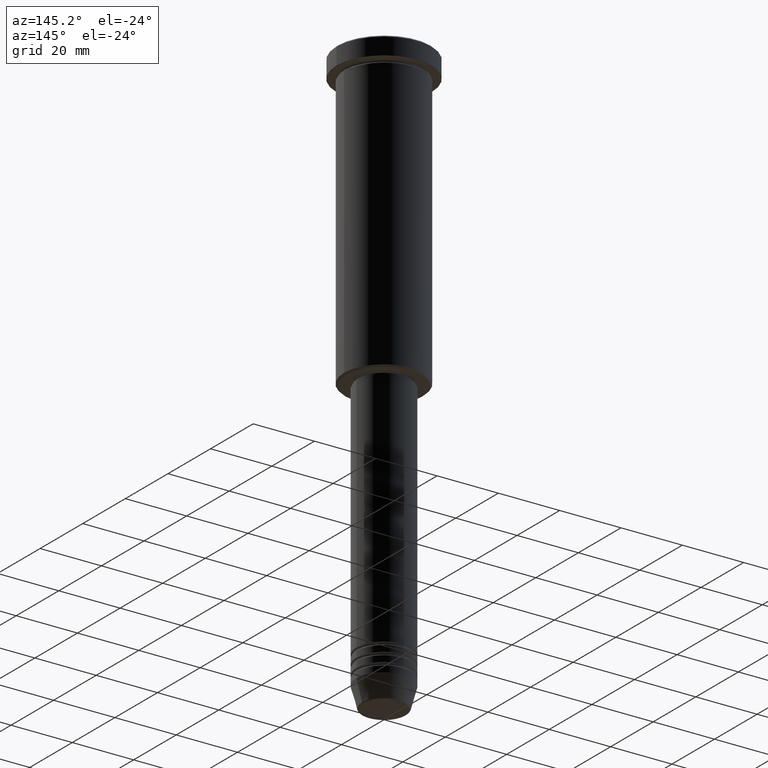
[diagram: clean part render]
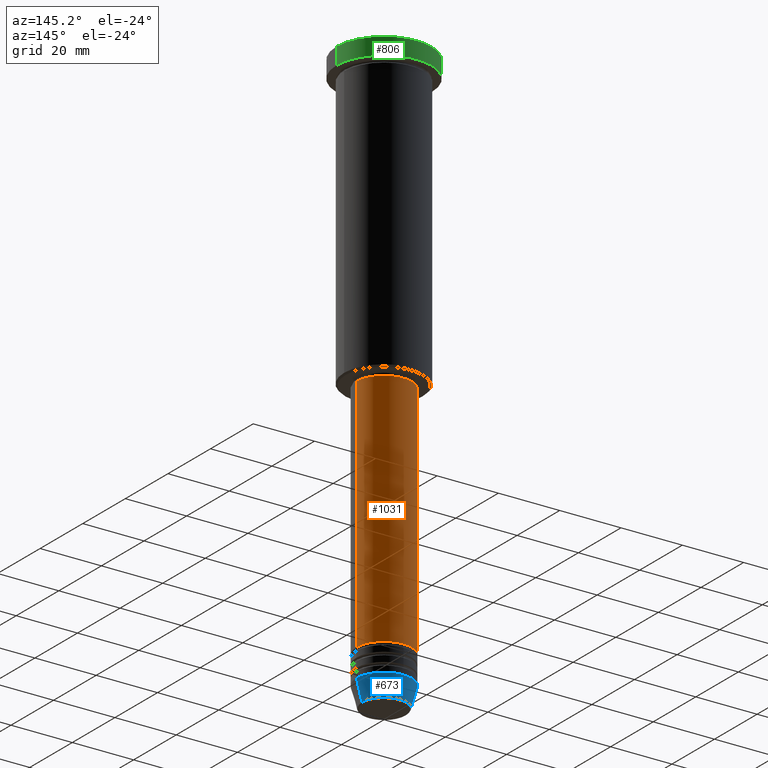
[diagram: same view with three faces highlighted in distinct colors, each labeled with its STEP entity id]
A machine part, auxiliary view with three faces highlighted in distinct colors.
Their STEP definitions:

[orange] entity #1031 — the highlighted cylindrical surface (edge-blend (fillet) strip) has radius 9 mm, axis along (-0, -0, 1).
#18 = EDGE_CURVE ( 'NONE', #261, #1147, #150, .T. ) ;
#36 = AXIS2_PLACEMENT_3D ( 'NONE', #495, #55, #239 ) ;
#55 = DIRECTION ( 'NONE',  ( -0.000000000000000000, -0.000000000000000000, 1.000000000000000000 ) ) ;
#136 = FACE_OUTER_BOUND ( 'NONE', #228, .T. ) ;
#139 = CARTESIAN_POINT ( 'NONE',  ( -9.000000000000000000, 1.102182119232617714E-15, -175.0000000000000000 ) ) ;
#150 = LINE ( 'NONE', #238, #580 ) ;
#151 = DIRECTION ( 'NONE',  ( -0.000000000000000000, -0.000000000000000000, 1.000000000000000000 ) ) ;
#193 = EDGE_CURVE ( 'NONE', #967, #1147, #1107, .T. ) ;
#228 = EDGE_LOOP ( 'NONE', ( #666, #1154, #354, #229 ) ) ;
#229 = ORIENTED_EDGE ( 'NONE', *, *, #918, .F. ) ;
#238 = CARTESIAN_POINT ( 'NONE',  ( -9.000000000000000000, 1.102182119232617714E-15, 0.000000000000000000 ) ) ;
#239 = DIRECTION ( 'NONE',  ( 1.000000000000000000, 0.000000000000000000, 0.000000000000000000 ) ) ;
#257 = VERTEX_POINT ( 'NONE', #597 ) ;
#261 = VERTEX_POINT ( 'NONE', #139 ) ;
#354 = ORIENTED_EDGE ( 'NONE', *, *, #193, .F. ) ;
#394 = AXIS2_PLACEMENT_3D ( 'NONE', #611, #151, #426 ) ;
#426 = DIRECTION ( 'NONE',  ( 1.000000000000000000, 0.000000000000000000, 0.000000000000000000 ) ) ;
#431 = AXIS2_PLACEMENT_3D ( 'NONE', #590, #678, #518 ) ;
#495 = CARTESIAN_POINT ( 'NONE',  ( 0.000000000000000000, 0.000000000000000000, 0.000000000000000000 ) ) ;
#501 = CARTESIAN_POINT ( 'NONE',  ( 9.000000000000000000, 0.000000000000000000, 0.000000000000000000 ) ) ;
#518 = DIRECTION ( 'NONE',  ( 1.000000000000000000, 0.000000000000000000, 0.000000000000000000 ) ) ;
#580 = VECTOR ( 'NONE', #699, 1000.000000000000000 ) ;
#590 = CARTESIAN_POINT ( 'NONE',  ( 0.000000000000000000, 0.000000000000000000, -97.00000000000002842 ) ) ;
#597 = CARTESIAN_POINT ( 'NONE',  ( 9.000000000000000000, 0.000000000000000000, -175.0000000000000000 ) ) ;
#598 = CARTESIAN_POINT ( 'NONE',  ( 9.000000000000000000, 0.000000000000000000, -97.00000000000002842 ) ) ;
#611 = CARTESIAN_POINT ( 'NONE',  ( 0.000000000000000000, 0.000000000000000000, -175.0000000000000000 ) ) ;
#665 = CIRCLE ( 'NONE', #394, 9.000000000000000000 ) ;
#666 = ORIENTED_EDGE ( 'NONE', *, *, #987, .T. ) ;
#678 = DIRECTION ( 'NONE',  ( -0.000000000000000000, -0.000000000000000000, 1.000000000000000000 ) ) ;
#699 = DIRECTION ( 'NONE',  ( -0.000000000000000000, -0.000000000000000000, 1.000000000000000000 ) ) ;
#805 = CARTESIAN_POINT ( 'NONE',  ( -9.000000000000000000, 1.102182119232617714E-15, -97.00000000000002842 ) ) ;
#835 = DIRECTION ( 'NONE',  ( -0.000000000000000000, -0.000000000000000000, 1.000000000000000000 ) ) ;
#918 = EDGE_CURVE ( 'NONE', #257, #967, #963, .T. ) ;
#963 = LINE ( 'NONE', #501, #970 ) ;
#967 = VERTEX_POINT ( 'NONE', #598 ) ;
#970 = VECTOR ( 'NONE', #835, 1000.000000000000000 ) ;
#987 = EDGE_CURVE ( 'NONE', #257, #261, #665, .T. ) ;
#1031 = ADVANCED_FACE ( 'NONE', ( #136 ), #1049, .T. ) ;
#1049 = CYLINDRICAL_SURFACE ( 'NONE', #36, 9.000000000000000000 ) ;
#1107 = CIRCLE ( 'NONE', #431, 9.000000000000000000 ) ;
#1147 = VERTEX_POINT ( 'NONE', #805 ) ;
#1154 = ORIENTED_EDGE ( 'NONE', *, *, #18, .T. ) ;

[blue] entity #673 — the highlighted conical surface has half-angle 15 deg.
#81 = LINE ( 'NONE', #732, #883 ) ;
#142 = CIRCLE ( 'NONE', #499, 7.223655072137196598 ) ;
#149 = EDGE_CURVE ( 'NONE', #475, #360, #818, .T. ) ;
#175 = DIRECTION ( 'NONE',  ( 1.000000000000000000, 0.000000000000000000, 0.000000000000000000 ) ) ;
#208 = CARTESIAN_POINT ( 'NONE',  ( 0.000000000000000000, 0.000000000000000000, -184.0000000000000284 ) ) ;
#236 = DIRECTION ( 'NONE',  ( -0.000000000000000000, -0.000000000000000000, 1.000000000000000000 ) ) ;
#259 = EDGE_CURVE ( 'NONE', #938, #743, #142, .T. ) ;
#279 = CARTESIAN_POINT ( 'NONE',  ( 0.000000000000000000, 0.000000000000000000, -184.0000000000000284 ) ) ;
#360 = VERTEX_POINT ( 'NONE', #1081 ) ;
#427 = LINE ( 'NONE', #434, #724 ) ;
#434 = CARTESIAN_POINT ( 'NONE',  ( 9.000000000000000000, 0.000000000000000000, -184.0000000000000284 ) ) ;
#455 = AXIS2_PLACEMENT_3D ( 'NONE', #208, #577, #932 ) ;
#457 = DIRECTION ( 'NONE',  ( -0.2588190451025213501, 3.169619151431772337E-17, 0.9659258262890680902 ) ) ;
#475 = VERTEX_POINT ( 'NONE', #701 ) ;
#499 = AXIS2_PLACEMENT_3D ( 'NONE', #1144, #236, #608 ) ;
#524 = EDGE_CURVE ( 'NONE', #938, #475, #427, .T. ) ;
#561 = ORIENTED_EDGE ( 'NONE', *, *, #259, .T. ) ;
#577 = DIRECTION ( 'NONE',  ( -0.000000000000000000, -0.000000000000000000, 1.000000000000000000 ) ) ;
#608 = DIRECTION ( 'NONE',  ( 1.000000000000000000, 0.000000000000000000, 0.000000000000000000 ) ) ;
#673 = ADVANCED_FACE ( 'NONE', ( #1172 ), #1060, .T. ) ;
#694 = EDGE_CURVE ( 'NONE', #743, #360, #81, .T. ) ;
#701 = CARTESIAN_POINT ( 'NONE',  ( 9.000000000000000000, 0.000000000000000000, -184.0000000000000284 ) ) ;
#724 = VECTOR ( 'NONE', #788, 1000.000000000000000 ) ;
#732 = CARTESIAN_POINT ( 'NONE',  ( -9.000000000000000000, 1.102182119232617714E-15, -184.0000000000000284 ) ) ;
#739 = AXIS2_PLACEMENT_3D ( 'NONE', #279, #898, #175 ) ;
#743 = VERTEX_POINT ( 'NONE', #804 ) ;
#788 = DIRECTION ( 'NONE',  ( 0.2588190451025213501, 0.000000000000000000, 0.9659258262890680902 ) ) ;
#797 = EDGE_LOOP ( 'NONE', ( #561, #1163, #1089, #850 ) ) ;
#804 = CARTESIAN_POINT ( 'NONE',  ( -7.223655072137197486, 9.934123627281769054E-16, -190.6294095225512706 ) ) ;
#818 = CIRCLE ( 'NONE', #455, 9.000000000000000000 ) ;
#850 = ORIENTED_EDGE ( 'NONE', *, *, #524, .F. ) ;
#883 = VECTOR ( 'NONE', #457, 1000.000000000000000 ) ;
#898 = DIRECTION ( 'NONE',  ( -0.000000000000000000, -0.000000000000000000, 1.000000000000000000 ) ) ;
#932 = DIRECTION ( 'NONE',  ( 1.000000000000000000, 0.000000000000000000, 0.000000000000000000 ) ) ;
#938 = VERTEX_POINT ( 'NONE', #1135 ) ;
#1060 = CONICAL_SURFACE ( 'NONE', #739, 9.000000000000000000, 0.2617993877991500740 ) ;
#1081 = CARTESIAN_POINT ( 'NONE',  ( -9.000000000000000000, 1.102182119232617714E-15, -184.0000000000000284 ) ) ;
#1089 = ORIENTED_EDGE ( 'NONE', *, *, #149, .F. ) ;
#1135 = CARTESIAN_POINT ( 'NONE',  ( 7.223655072137196598, 0.000000000000000000, -190.6294095225512706 ) ) ;
#1144 = CARTESIAN_POINT ( 'NONE',  ( 0.000000000000000000, 0.000000000000000000, -190.6294095225512706 ) ) ;
#1163 = ORIENTED_EDGE ( 'NONE', *, *, #694, .T. ) ;
#1172 = FACE_OUTER_BOUND ( 'NONE', #797, .T. ) ;

[green] entity #806 — the highlighted cylindrical surface (partial cylindrical patch) has radius 15.5 mm, axis along (-0, -0, 1).
#21 = CARTESIAN_POINT ( 'NONE',  ( 15.50000000000000000, 0.000000000000000000, -5.999999999999995559 ) ) ;
#25 = DIRECTION ( 'NONE',  ( -0.000000000000000000, -0.000000000000000000, 1.000000000000000000 ) ) ;
#30 = EDGE_CURVE ( 'NONE', #106, #379, #782, .T. ) ;
#34 = VECTOR ( 'NONE', #116, 1000.000000000000000 ) ;
#37 = ORIENTED_EDGE ( 'NONE', *, *, #56, .F. ) ;
#56 = EDGE_CURVE ( 'NONE', #106, #79, #177, .T. ) ;
#76 = CARTESIAN_POINT ( 'NONE',  ( 0.000000000000000000, 0.000000000000000000, -5.999999999999995559 ) ) ;
#79 = VERTEX_POINT ( 'NONE', #302 ) ;
#103 = CARTESIAN_POINT ( 'NONE',  ( 15.50000000000000000, 0.000000000000000000, 0.000000000000000000 ) ) ;
#106 = VERTEX_POINT ( 'NONE', #21 ) ;
#116 = DIRECTION ( 'NONE',  ( -0.000000000000000000, -0.000000000000000000, 1.000000000000000000 ) ) ;
#177 = LINE ( 'NONE', #103, #956 ) ;
#215 = CYLINDRICAL_SURFACE ( 'NONE', #466, 15.50000000000000000 ) ;
#225 = CARTESIAN_POINT ( 'NONE',  ( -15.50000000000000000, 1.898202538678397557E-15, -0.5000000000000125455 ) ) ;
#302 = CARTESIAN_POINT ( 'NONE',  ( 15.50000000000000000, 0.000000000000000000, -0.5000000000000125455 ) ) ;
#310 = FACE_OUTER_BOUND ( 'NONE', #386, .T. ) ;
#379 = VERTEX_POINT ( 'NONE', #749 ) ;
#386 = EDGE_LOOP ( 'NONE', ( #1111, #1125, #976, #37 ) ) ;
#401 = DIRECTION ( 'NONE',  ( -0.000000000000000000, -0.000000000000000000, 1.000000000000000000 ) ) ;
#424 = EDGE_CURVE ( 'NONE', #1017, #79, #1005, .T. ) ;
#466 = AXIS2_PLACEMENT_3D ( 'NONE', #848, #401, #1035 ) ;
#474 = DIRECTION ( 'NONE',  ( 1.000000000000000000, 0.000000000000000000, 0.000000000000000000 ) ) ;
#560 = EDGE_CURVE ( 'NONE', #379, #1017, #1095, .T. ) ;
#594 = CARTESIAN_POINT ( 'NONE',  ( 0.000000000000000000, 0.000000000000000000, -0.5000000000000125455 ) ) ;
#646 = AXIS2_PLACEMENT_3D ( 'NONE', #594, #1120, #474 ) ;
#647 = CARTESIAN_POINT ( 'NONE',  ( -15.50000000000000000, 1.898202538678397557E-15, 0.000000000000000000 ) ) ;
#749 = CARTESIAN_POINT ( 'NONE',  ( -15.50000000000000000, 1.898202538678397557E-15, -5.999999999999995559 ) ) ;
#782 = CIRCLE ( 'NONE', #931, 15.50000000000000000 ) ;
#806 = ADVANCED_FACE ( 'NONE', ( #310 ), #215, .T. ) ;
#820 = DIRECTION ( 'NONE',  ( 1.000000000000000000, 0.000000000000000000, 0.000000000000000000 ) ) ;
#848 = CARTESIAN_POINT ( 'NONE',  ( 0.000000000000000000, 0.000000000000000000, 0.000000000000000000 ) ) ;
#931 = AXIS2_PLACEMENT_3D ( 'NONE', #76, #982, #820 ) ;
#956 = VECTOR ( 'NONE', #25, 1000.000000000000000 ) ;
#976 = ORIENTED_EDGE ( 'NONE', *, *, #424, .T. ) ;
#982 = DIRECTION ( 'NONE',  ( -0.000000000000000000, -0.000000000000000000, 1.000000000000000000 ) ) ;
#1005 = CIRCLE ( 'NONE', #646, 15.50000000000000000 ) ;
#1017 = VERTEX_POINT ( 'NONE', #225 ) ;
#1035 = DIRECTION ( 'NONE',  ( 1.000000000000000000, 0.000000000000000000, 0.000000000000000000 ) ) ;
#1095 = LINE ( 'NONE', #647, #34 ) ;
#1111 = ORIENTED_EDGE ( 'NONE', *, *, #30, .T. ) ;
#1120 = DIRECTION ( 'NONE',  ( 0.000000000000000000, 0.000000000000000000, -1.000000000000000000 ) ) ;
#1125 = ORIENTED_EDGE ( 'NONE', *, *, #560, .T. ) ;